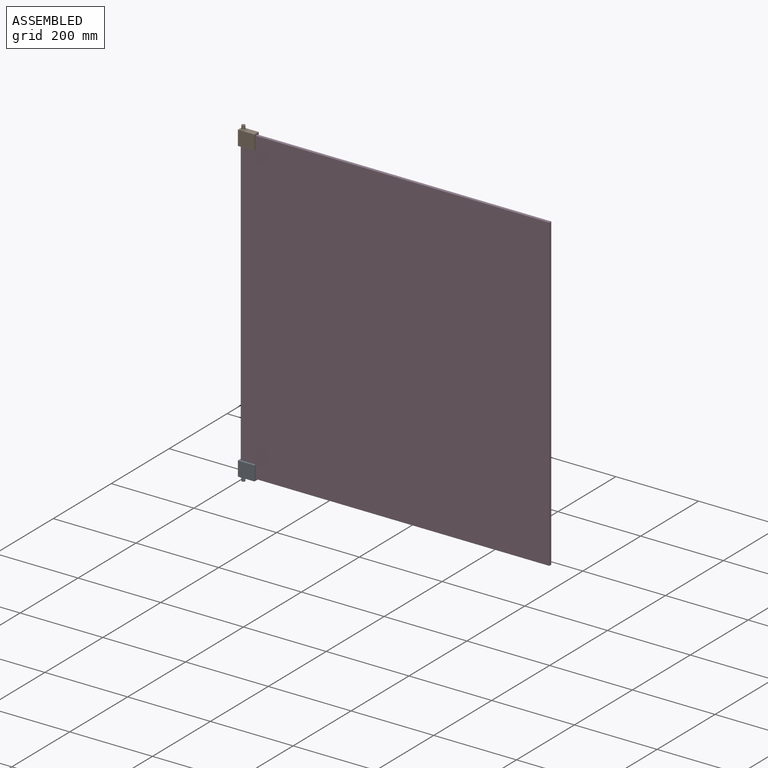
[diagram: assembled view]
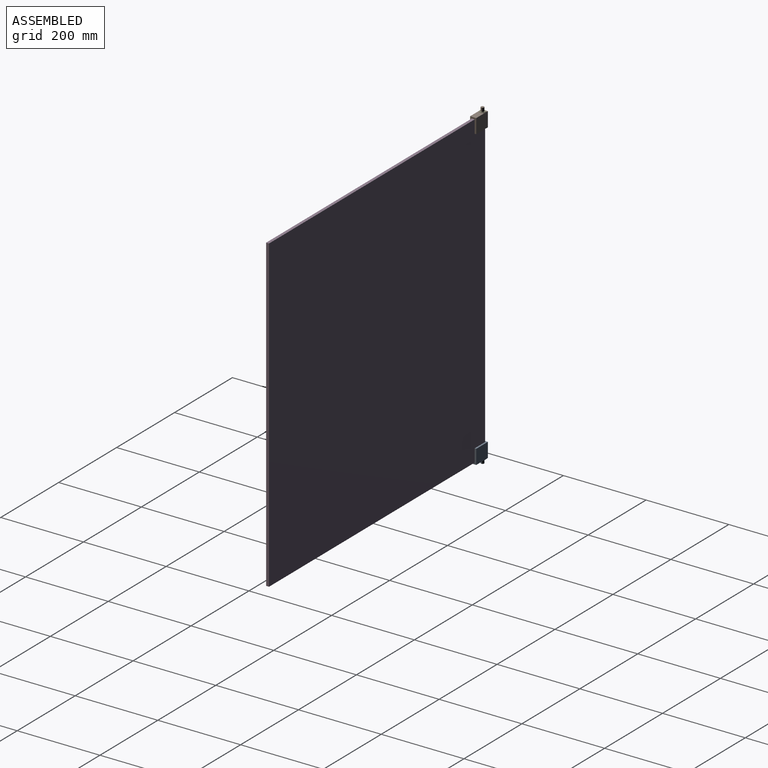
[diagram: assembled view, second angle]
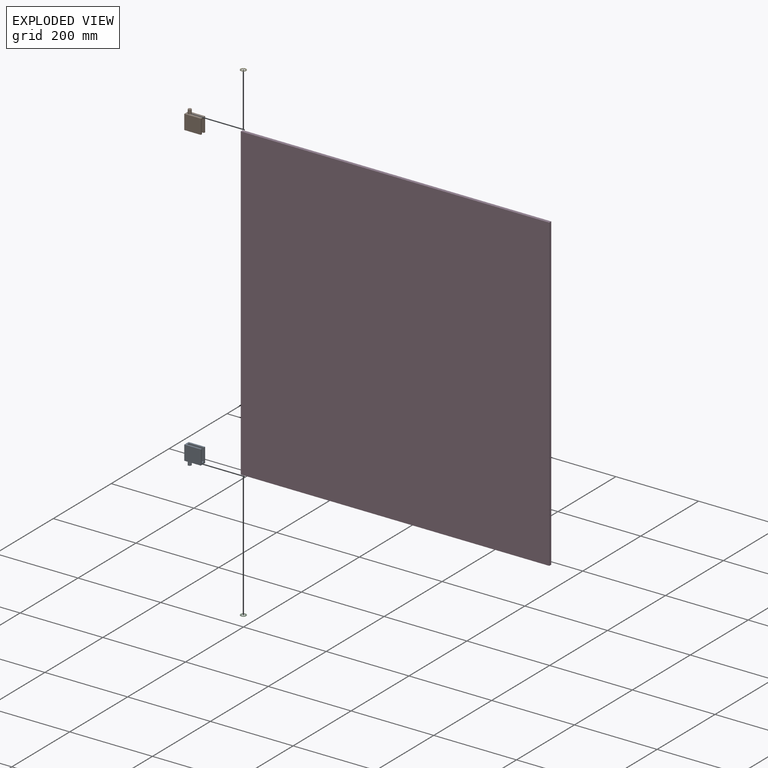
[diagram: exploded view]
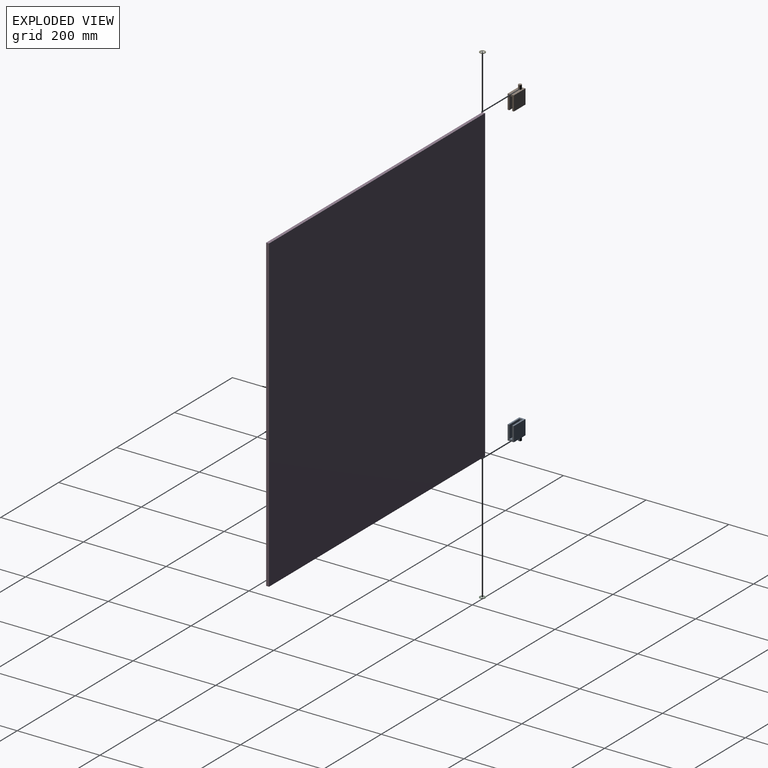
[diagram: exploded view, second angle]
ASSEMBLY  parts=5 mates=4
PART A: 12 faces, bbox 40x15x45.3 mm
  f0: plane 40x15mm, normal (0,0,1), area 348mm2, adj f1,f2,f4,f5,f7,f8,f9
  f1: plane 35.32x15mm, normal (1,0,0), area 310.6mm2, adj f0,f3,f4,f5,f6,f8,f9
  f2: plane 35.32x15mm, normal (-1,0,0), area 529.8mm2, adj f0,f3,f4,f5
  f3: plane 40x15mm, normal (0,0,-1), area 549.7mm2, adj f1,f2,f4,f5,f10
  f4: plane 40x35.32mm, normal (0,-1,0), area 1412.8mm2, adj f0,f1,f2,f3
  f5: plane 40x35.32mm, normal (0,1,0), area 1412.8mm2, adj f0,f1,f2,f3
  f6: plane 36x7mm, normal (0,0,1), area 252mm2, adj f1,f7,f8,f9
  f7: plane 31.32x7mm, normal (1,0,0), area 219.2mm2, adj f0,f6,f8,f9
  f8: plane 36x31.32mm, normal (0,-1,0), area 1127.5mm2, adj f0,f1,f6,f7
  f9: plane 36x31.32mm, normal (0,1,0), area 1127.5mm2, adj f0,f1,f6,f7
  f10: cylinder r=4mm len=10mm, axis (0,0,1), area 251.3mm2, adj f3,f11
  f11: plane 8x8mm, normal (0,0,-1), area 50.3mm2, adj f10
PART B: same geometry as A
PART C: 4 faces, bbox 14x14x1 mm
  f0: cylinder r=4.1mm len=8.2mm, axis (0,0,-1), area 25.8mm2, adj f2,f3
  f1: cylinder r=7mm len=14mm, axis (0,0,-1), area 44mm2, adj f2,f3
  f2: plane 14x14mm, normal (0,0,1), area 101.1mm2, adj f0,f1
  f3: plane 14x14mm, normal (0,0,-1), area 101.1mm2, adj f0,f1
PART D: 6 faces, bbox 746x7x750 mm
  f0: plane 746x7mm, normal (0,0,-1), area 5222mm2, adj f1,f3,f4,f5
  f1: plane 750x7mm, normal (1,0,0), area 5250mm2, adj f0,f2,f4,f5
  f2: plane 746x7mm, normal (0,0,1), area 5222mm2, adj f1,f3,f4,f5
  f3: plane 750x7mm, normal (-1,0,0), area 5250mm2, adj f0,f2,f4,f5
  f4: plane 750x746mm, normal (0,-1,0), area 559500mm2, adj f0,f1,f2,f3
  f5: plane 750x746mm, normal (0,1,0), area 559500mm2, adj f0,f1,f2,f3
PART E: same geometry as C
PLACE A t=(-219.77,-183.54,-380.73)mm
PLACE B rot(axis=(1,0,0),180deg) t=(-219.77,-183.54,377.27)mm
PLACE C t=(-211.77,-183.54,-381.73)mm
PLACE D t=(157.23,-180.04,-1.73)mm fixed
PLACE E rot(axis=(1,0,0),0deg) t=(-211.77,-183.54,377.27)mm
MATE fastened D.f3 <-> B.f7  axis (-1,0,0) through (-215.77,-187.04,373.27)mm
MATE fastened D.f3 <-> A.f7  axis (-1,0,0) through (-215.77,-187.04,-376.73)mm
MATE fastened E.f0 <-> B.f10  axis (0,0,-1) through (-211.77,-183.54,377.27)mm
MATE fastened C.f0 <-> A.f10  axis (0,0,1) through (-211.77,-183.54,-380.73)mm
